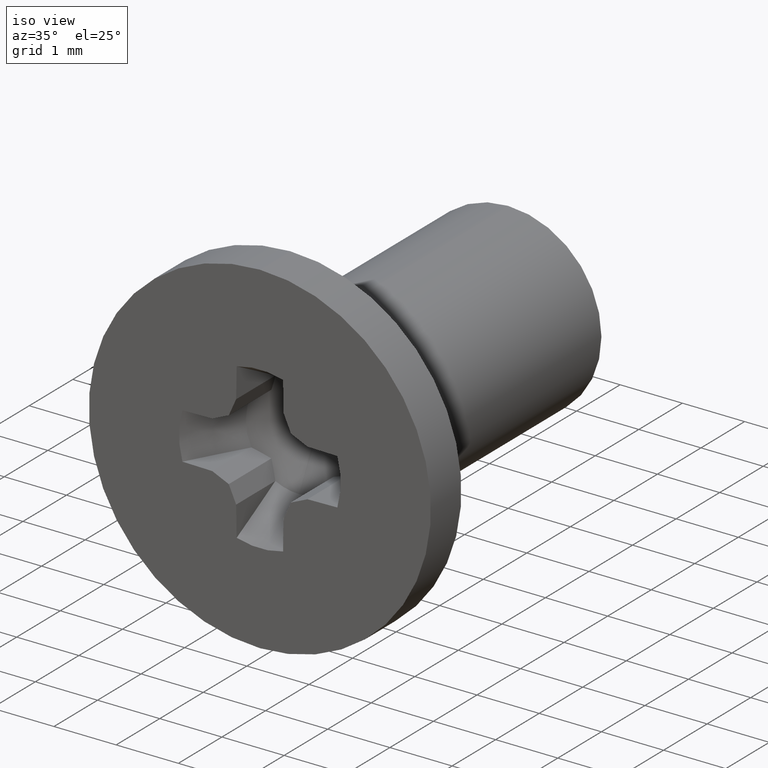
[diagram: clean part render]
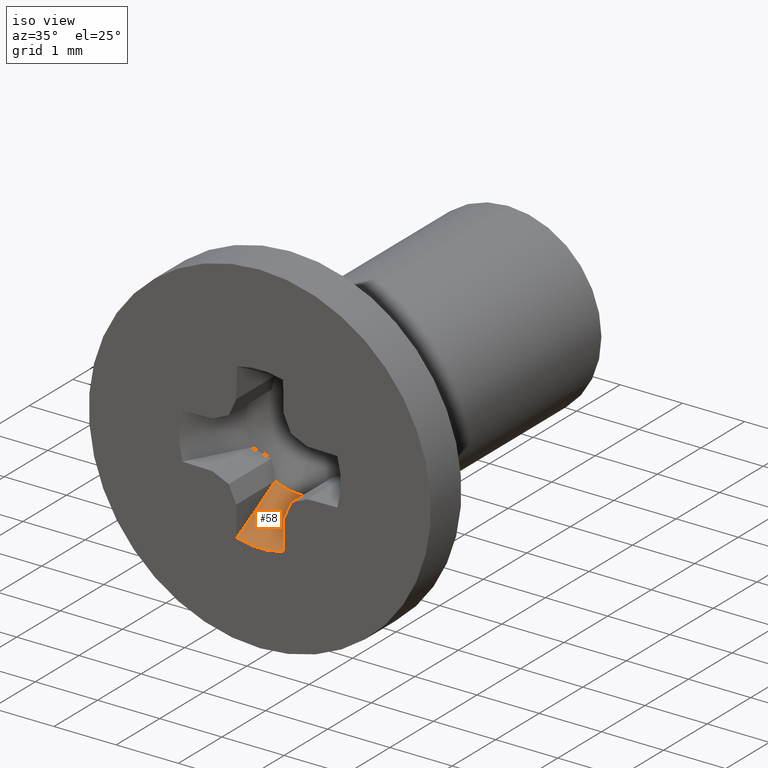
[diagram: same view with one face highlighted and labeled with its STEP entity id]
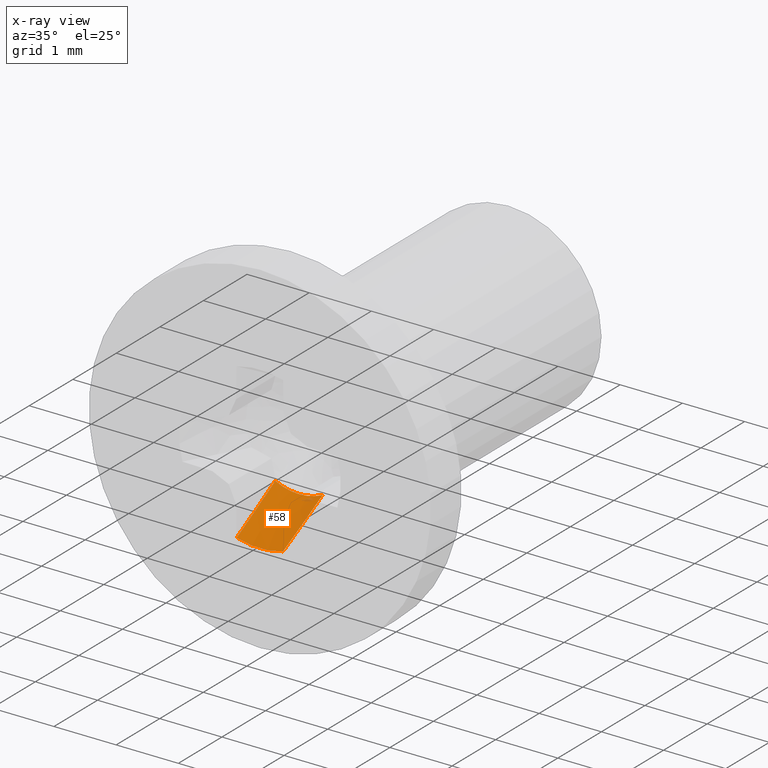
[diagram: x-ray of the same camera — body ghosted, the highlighted face saturated]
A machine part, iso view. The second image highlights one B-rep face of the part: STEP entity #58.
The next image is the same camera in x-ray: the body ghosted, the highlighted face saturated — about 1% of this face is hidden behind the body in this view.
In plain terms, the highlighted face is a freeform B-spline surface patch.
Its self-contained STEP definition (entity closure, byte-faithful):
#58=ADVANCED_FACE('',(#252),#251,.F.);
#251=( BOUNDED_SURFACE() B_SPLINE_SURFACE( 2,1,((#457,#458),(#459,#460),(#461,#462)), .UNSPECIFIED.,.F.,.F.,.F.) B_SPLINE_SURFACE_WITH_KNOTS((3,3),(2,2),(0.00000000000E+00,1.00000000000E+00),(0.00000000000E+00,1.00000000000E+00), .UNSPECIFIED. ) GEOMETRIC_REPRESENTATION_ITEM() RATIONAL_B_SPLINE_SURFACE(((1.00000000000E+00,1.00000000000E+00),(8.94749471780E-01,8.94749471780E-01),(1.00000000000E+00,1.00000000000E+00))) REPRESENTATION_ITEM('') SURFACE() );
#252=FACE_OUTER_BOUND('',#463,.T.);
#457=CARTESIAN_POINT('',(-3.81921402533E-01,2.00126283588E-01,-7.65103363488E-01));
#458=CARTESIAN_POINT('',(-5.80745063328E-01,-7.00607308886E-01,-1.16340691654E+00));
#459=CARTESIAN_POINT('',(-5.91765176255E-05,2.00126283588E-01,-9.55719904852E-01));
#460=CARTESIAN_POINT('',(-8.99830966477E-05,-7.00607308886E-01,-1.45325612282E+00));
#461=CARTESIAN_POINT('',(3.81826651861E-01,2.00126283588E-01,-7.65150653442E-01));
#462=CARTESIAN_POINT('',(5.80600986602E-01,-7.00607308886E-01,-1.16347882507E+00));
#463=EDGE_LOOP('',(#609,#610,#611,#612,#613));
#609=ORIENTED_EDGE('',*,*,#692,.F.);
#610=ORIENTED_EDGE('',*,*,#718,.F.);
#611=ORIENTED_EDGE('',*,*,#719,.F.);
#612=ORIENTED_EDGE('',*,*,#695,.F.);
#613=ORIENTED_EDGE('',*,*,#705,.T.);
#692=EDGE_CURVE('',#903,#923,#924,.T.);
#695=EDGE_CURVE('',#937,#944,#945,.T.);
#705=EDGE_CURVE('',#937,#923,#1009,.T.);
#718=EDGE_CURVE('',#1095,#903,#1096,.T.);
#719=EDGE_CURVE('',#944,#1095,#1102,.T.);
#903=VERTEX_POINT('',#1290);
#923=VERTEX_POINT('',#1302);
#924=(BOUNDED_CURVE() B_SPLINE_CURVE(3,(#1303,#1304,#1305,#1306),.UNSPECIFIED.,.F.,.F.) B_SPLINE_CURVE_WITH_KNOTS((4,4),(2.28899350574E-07,1.01965903334E-03),.UNSPECIFIED.) CURVE() GEOMETRIC_REPRESENTATION_ITEM() RATIONAL_B_SPLINE_CURVE((1.00000000000E+00,1.00000000000E+00,1.00000000000E+00,1.00000000000E+00)) REPRESENTATION_ITEM('') );
#937=VERTEX_POINT('',#1311);
#944=VERTEX_POINT('',#1315);
#945=(BOUNDED_CURVE() B_SPLINE_CURVE(3,(#1316,#1317,#1318,#1319),.UNSPECIFIED.,.F.,.F.) B_SPLINE_CURVE_WITH_KNOTS((4,4),(2.25290084567E-07,1.01965542407E-03),.UNSPECIFIED.) CURVE() GEOMETRIC_REPRESENTATION_ITEM() RATIONAL_B_SPLINE_CURVE((1.00000000000E+00,1.00000000000E+00,1.00000000000E+00,1.00000000000E+00)) REPRESENTATION_ITEM('') );
#1009=CIRCLE('',#1359,1.30000000000E+00);
#1095=VERTEX_POINT('',#1411);
#1096=CIRCLE('',#1415,8.55430032422E-01);
#1102=CIRCLE('',#1419,8.55430032422E-01);
#1290=CARTESIAN_POINT('',(3.81326433417E-01,1.99518974701E-01,-7.65735392644E-01));
#1302=CARTESIAN_POINT('',(3.72954671907E-01,-7.00000000000E-01,-1.24535328831E+00));
#1303=CARTESIAN_POINT('',(3.81326433417E-01,1.99518974701E-01,-7.65735392644E-01));
#1304=CARTESIAN_POINT('',(3.78439931839E-01,-9.73899157991E-02,-9.31102957302E-01));
#1305=CARTESIAN_POINT('',(3.75685547962E-01,-3.98335804523E-01,-1.08890150392E+00));
#1306=CARTESIAN_POINT('',(3.72954671907E-01,-7.00000000000E-01,-1.24535328831E+00));
#1311=CARTESIAN_POINT('',(-3.72954671907E-01,-7.00000000000E-01,-1.24535328831E+00));
#1315=CARTESIAN_POINT('',(-3.81326433417E-01,1.99518974701E-01,-7.65735392643E-01));
#1316=CARTESIAN_POINT('',(-3.72954671907E-01,-7.00000000000E-01,-1.24535328831E+00));
#1317=CARTESIAN_POINT('',(-3.75685547962E-01,-3.98335804523E-01,-1.08890150392E+00));
#1318=CARTESIAN_POINT('',(-3.78439931839E-01,-9.73899157989E-02,-9.31102957301E-01));
#1319=CARTESIAN_POINT('',(-3.81326433417E-01,1.99518974701E-01,-7.65735392643E-01));
#1356=CARTESIAN_POINT('',(0.00000000000E+00,-7.00000000000E-01,0.00000000000E+00));
#1357=DIRECTION('',(0.00000000000E+00,-1.00000000000E+00,0.00000000000E+00));
#1358=DIRECTION('',(-0.00000000000E+00,-0.00000000000E+00,1.00000000000E+00));
#1359=AXIS2_PLACEMENT_3D('',#1356,#1357,#1358);
#1411=CARTESIAN_POINT('',(1.44300971262E-08,1.99518974701E-01,-8.55430032422E-01));
#1412=CARTESIAN_POINT('',(0.00000000000E+00,1.99518974701E-01,0.00000000000E+00));
#1413=DIRECTION('',(0.00000000000E+00,-1.00000000000E+00,0.00000000000E+00));
#1414=DIRECTION('',(-0.00000000000E+00,-0.00000000000E+00,1.00000000000E+00));
#1415=AXIS2_PLACEMENT_3D('',#1412,#1413,#1414);
#1416=CARTESIAN_POINT('',(0.00000000000E+00,1.99518974701E-01,0.00000000000E+00));
#1417=DIRECTION('',(0.00000000000E+00,-1.00000000000E+00,0.00000000000E+00));
#1418=DIRECTION('',(-0.00000000000E+00,-0.00000000000E+00,1.00000000000E+00));
#1419=AXIS2_PLACEMENT_3D('',#1416,#1417,#1418);